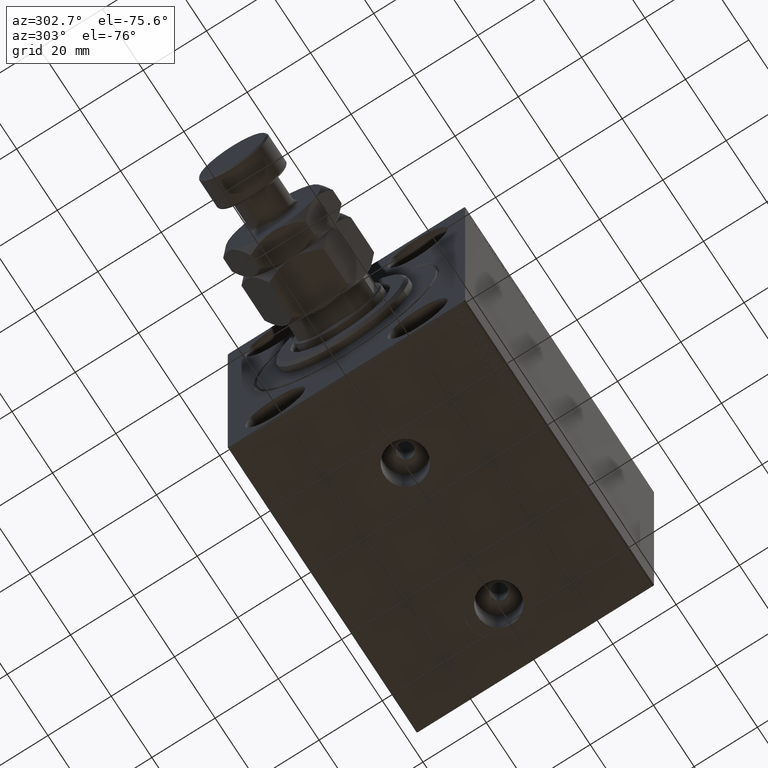
[diagram: clean part render]
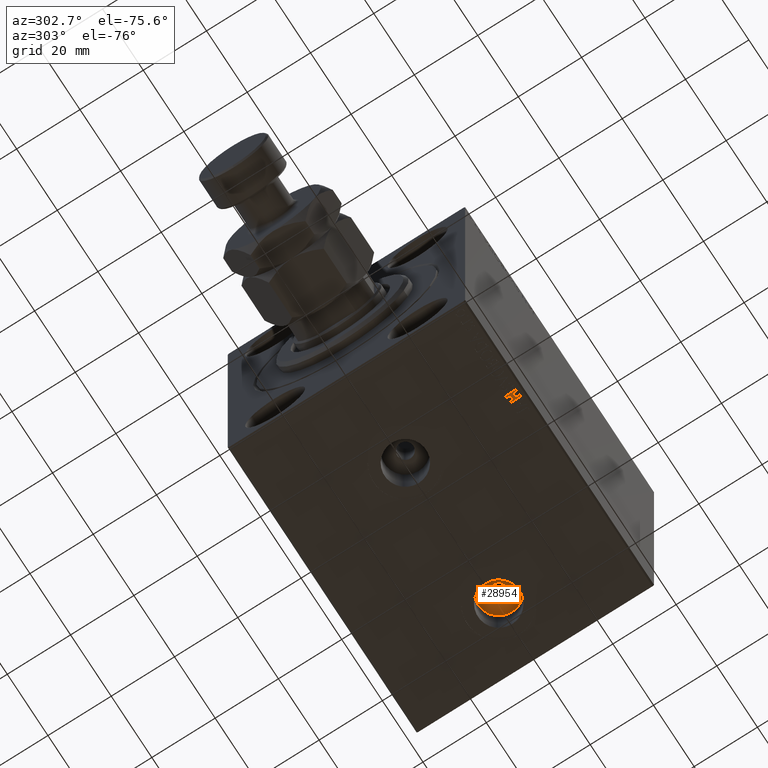
[diagram: same view with one face highlighted and labeled with its STEP entity id]
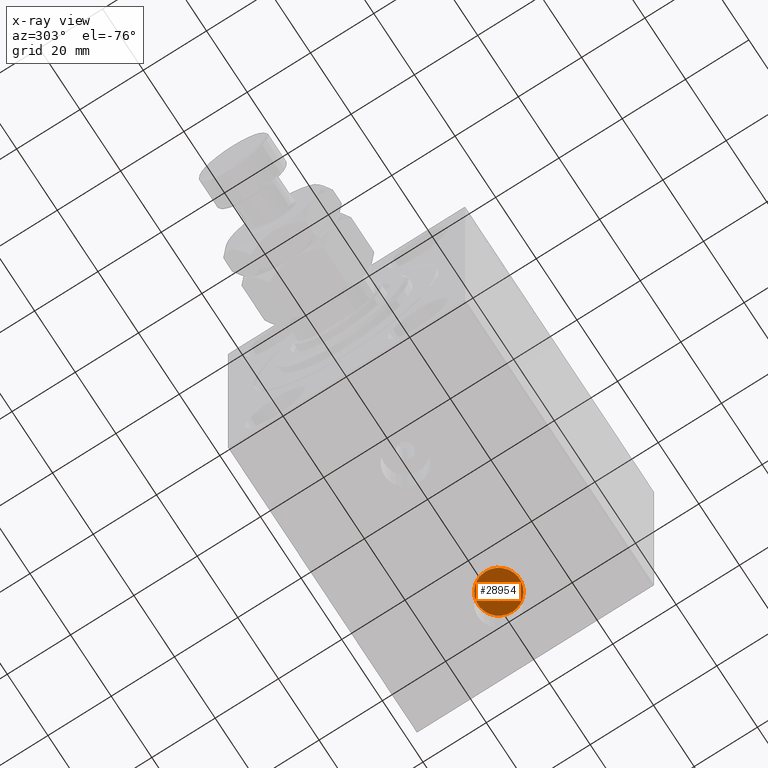
[diagram: x-ray of the same camera — body ghosted, the highlighted face saturated]
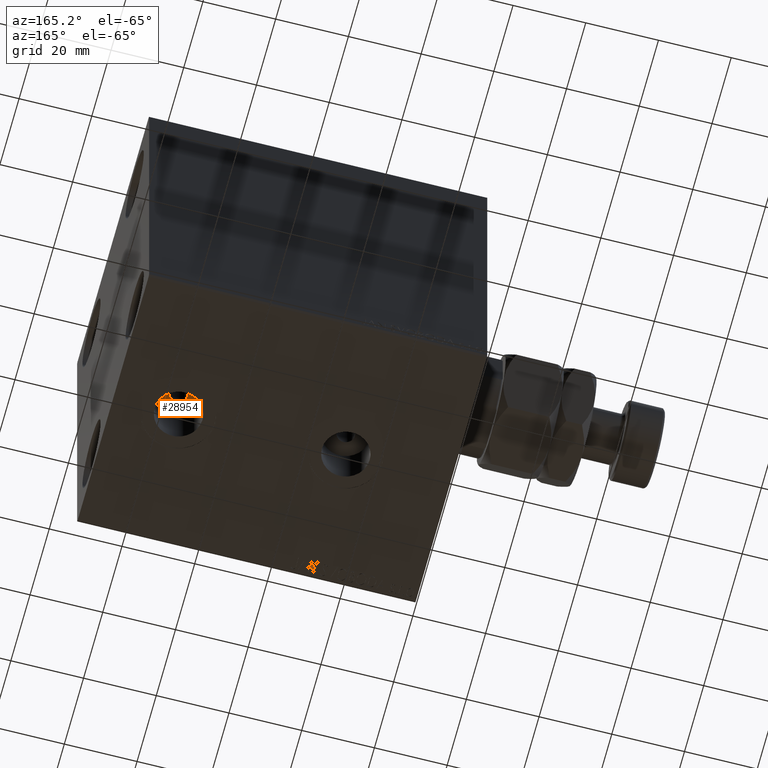
[diagram: same view with one face highlighted and labeled with its STEP entity id]
A machine part, auxiliary view. The second image highlights one B-rep face of the part: STEP entity #28954.
The next image is the same camera in x-ray: the body ghosted, the highlighted face saturated — about 0% of this face is hidden behind the body in this view.
A second angle (auxiliary view) of the same face is appended — the face is thin or edge-on in the first view.
In plain terms, the highlighted planar face has unit normal (0, 0, -1).
Its self-contained STEP definition (entity closure, byte-faithful):
#4143 = CARTESIAN_POINT ( 'NONE',  ( 77.50000000000001421, -8.565122402189758353E-16, -37.00000000000000000 ) ) ;
#4287 = ORIENTED_EDGE ( 'NONE', *, *, #22572, .F. ) ;
#4355 = VERTEX_POINT ( 'NONE', #4143 ) ;
#4694 = AXIS2_PLACEMENT_3D ( 'NONE', #6828, #13532, #41531 ) ;
#4786 = EDGE_CURVE ( 'NONE', #4355, #45548, #9498, .T. ) ;
#5076 = VERTEX_POINT ( 'NONE', #5116 ) ;
#5116 = CARTESIAN_POINT ( 'NONE',  ( 68.42000000000000171, -1.162673940005812621E-15, -37.00000000000000000 ) ) ;
#6828 = CARTESIAN_POINT ( 'NONE',  ( 75.00000000000001421, -1.162673940005812621E-15, -37.00000000000000000 ) ) ;
#7643 = CIRCLE ( 'NONE', #32051, 6.580000000000002736 ) ;
#9498 = CIRCLE ( 'NONE', #17597, 2.500000000000002220 ) ;
#12999 = CARTESIAN_POINT ( 'NONE',  ( 0.000000000000000000, 0.000000000000000000, -37.00000000000000000 ) ) ;
#13532 = DIRECTION ( 'NONE',  ( 0.000000000000000000, 0.000000000000000000, -1.000000000000000000 ) ) ;
#14177 = DIRECTION ( 'NONE',  ( -1.000000000000000000, 0.000000000000000000, 0.000000000000000000 ) ) ;
#14311 = CARTESIAN_POINT ( 'NONE',  ( 75.00000000000001421, -1.162673940005812621E-15, -37.00000000000000000 ) ) ;
#14636 = CARTESIAN_POINT ( 'NONE',  ( 75.00000000000001421, -1.162673940005812621E-15, -37.00000000000000000 ) ) ;
#16942 = FACE_BOUND ( 'NONE', #34777, .T. ) ;
#17597 = AXIS2_PLACEMENT_3D ( 'NONE', #36453, #32752, #18848 ) ;
#18204 = CIRCLE ( 'NONE', #31514, 6.580000000000002736 ) ;
#18848 = DIRECTION ( 'NONE',  ( -1.000000000000000000, 0.000000000000000000, 0.000000000000000000 ) ) ;
#19726 = EDGE_CURVE ( 'NONE', #5076, #33113, #7643, .T. ) ;
#20174 = EDGE_LOOP ( 'NONE', ( #43406, #25104 ) ) ;
#20631 = DIRECTION ( 'NONE',  ( 0.000000000000000000, 0.000000000000000000, -1.000000000000000000 ) ) ;
#22572 = EDGE_CURVE ( 'NONE', #45548, #4355, #29043, .T. ) ;
#25104 = ORIENTED_EDGE ( 'NONE', *, *, #31722, .T. ) ;
#25437 = DIRECTION ( 'NONE',  ( 0.000000000000000000, 0.000000000000000000, -1.000000000000000000 ) ) ;
#28954 = ADVANCED_FACE ( 'NONE', ( #16942, #31055 ), #45157, .T. ) ;
#29043 = CIRCLE ( 'NONE', #4694, 2.500000000000002220 ) ;
#31055 = FACE_OUTER_BOUND ( 'NONE', #20174, .T. ) ;
#31281 = DIRECTION ( 'NONE',  ( -1.000000000000000000, 0.000000000000000000, -0.000000000000000000 ) ) ;
#31514 = AXIS2_PLACEMENT_3D ( 'NONE', #14636, #31999, #14177 ) ;
#31722 = EDGE_CURVE ( 'NONE', #33113, #5076, #18204, .T. ) ;
#31999 = DIRECTION ( 'NONE',  ( 0.000000000000000000, 0.000000000000000000, -1.000000000000000000 ) ) ;
#32051 = AXIS2_PLACEMENT_3D ( 'NONE', #14311, #25437, #42081 ) ;
#32752 = DIRECTION ( 'NONE',  ( 0.000000000000000000, 0.000000000000000000, -1.000000000000000000 ) ) ;
#32913 = AXIS2_PLACEMENT_3D ( 'NONE', #12999, #20631, #31281 ) ;
#33113 = VERTEX_POINT ( 'NONE', #41625 ) ;
#33345 = ORIENTED_EDGE ( 'NONE', *, *, #4786, .F. ) ;
#34777 = EDGE_LOOP ( 'NONE', ( #4287, #33345 ) ) ;
#36453 = CARTESIAN_POINT ( 'NONE',  ( 75.00000000000001421, -1.162673940005812621E-15, -37.00000000000000000 ) ) ;
#41531 = DIRECTION ( 'NONE',  ( -1.000000000000000000, 0.000000000000000000, 0.000000000000000000 ) ) ;
#41625 = CARTESIAN_POINT ( 'NONE',  ( 81.58000000000001251, -3.568563461668541708E-16, -37.00000000000000000 ) ) ;
#42081 = DIRECTION ( 'NONE',  ( -1.000000000000000000, 0.000000000000000000, 0.000000000000000000 ) ) ;
#43406 = ORIENTED_EDGE ( 'NONE', *, *, #19726, .T. ) ;
#44905 = CARTESIAN_POINT ( 'NONE',  ( 72.50000000000001421, -1.162673940005812621E-15, -37.00000000000000000 ) ) ;
#45157 = PLANE ( 'NONE',  #32913 ) ;
#45548 = VERTEX_POINT ( 'NONE', #44905 ) ;